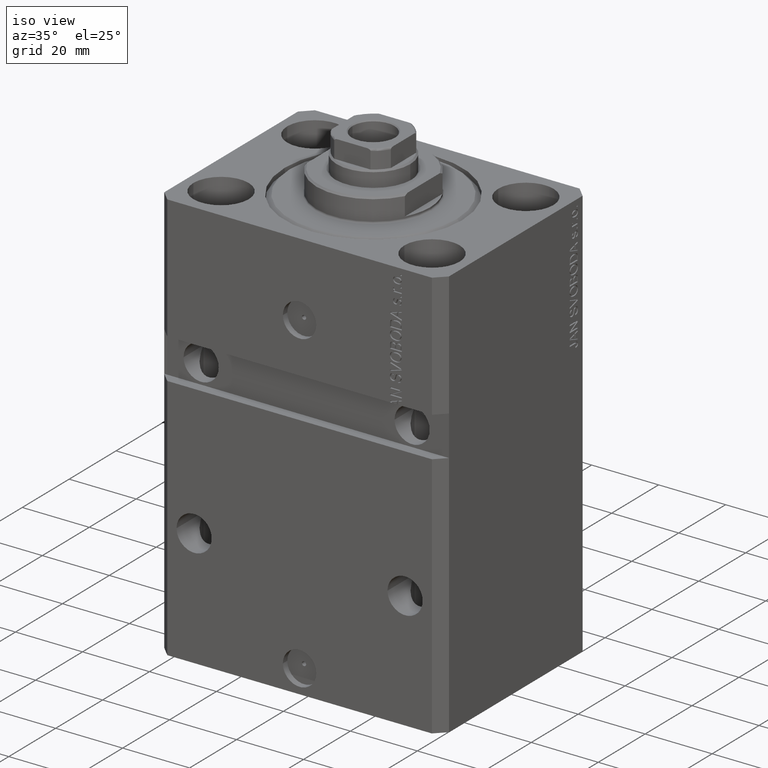
[diagram: clean part render]
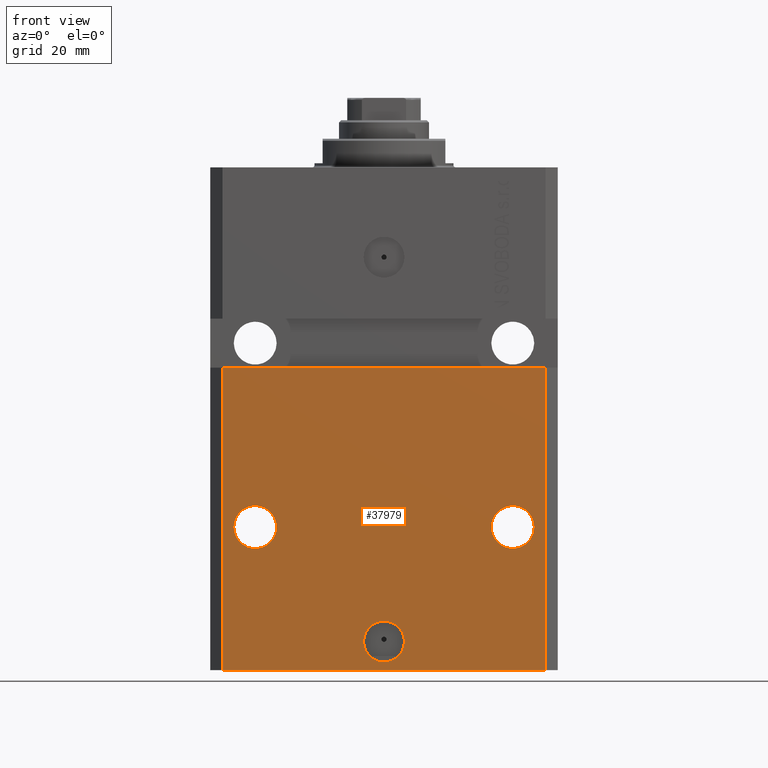
[diagram: tour spotlight — one face highlighted and labeled with its STEP entity id]
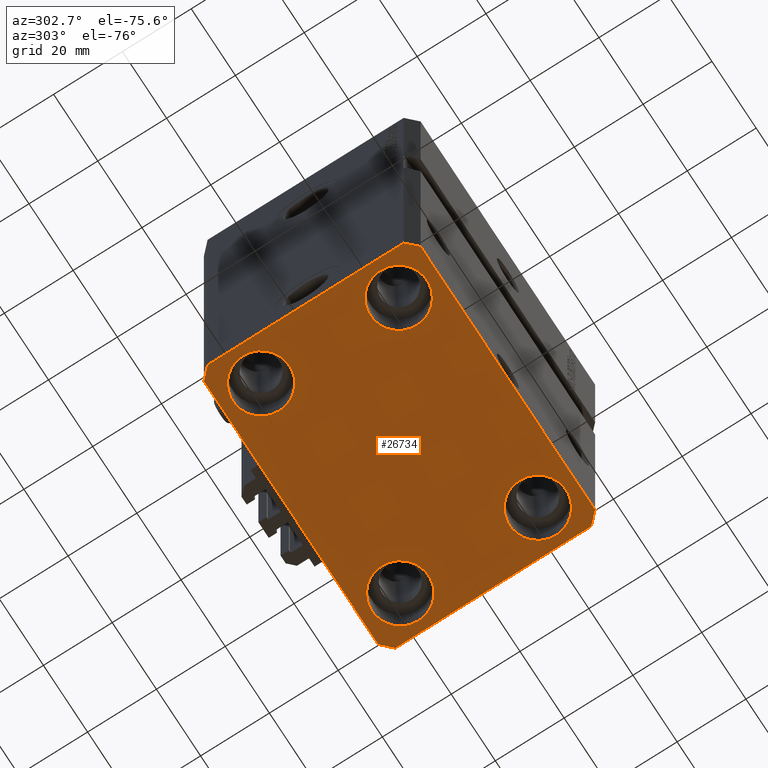
[diagram: tour spotlight — one face highlighted and labeled with its STEP entity id]
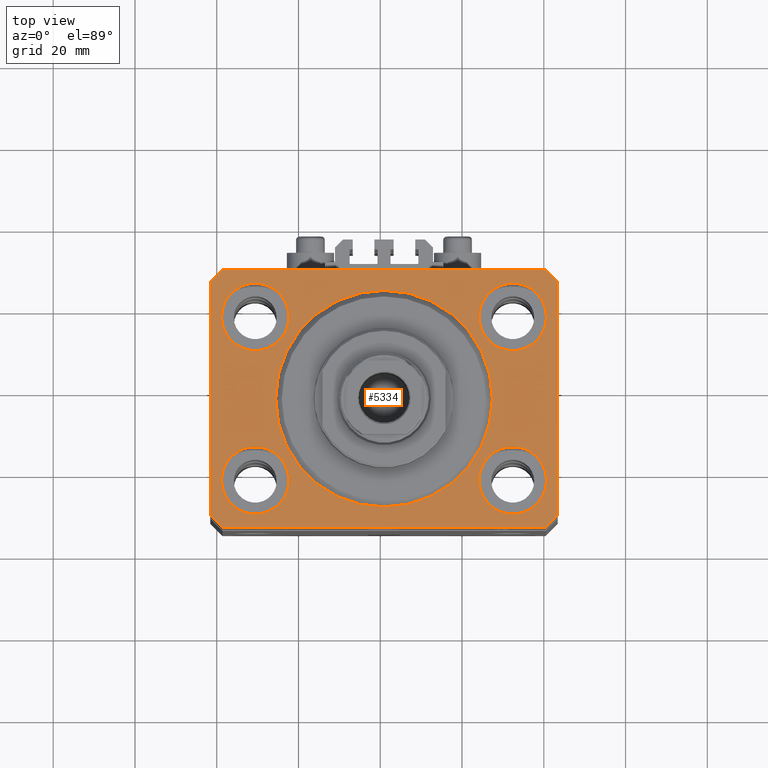
[diagram: tour spotlight — one face highlighted and labeled with its STEP entity id]
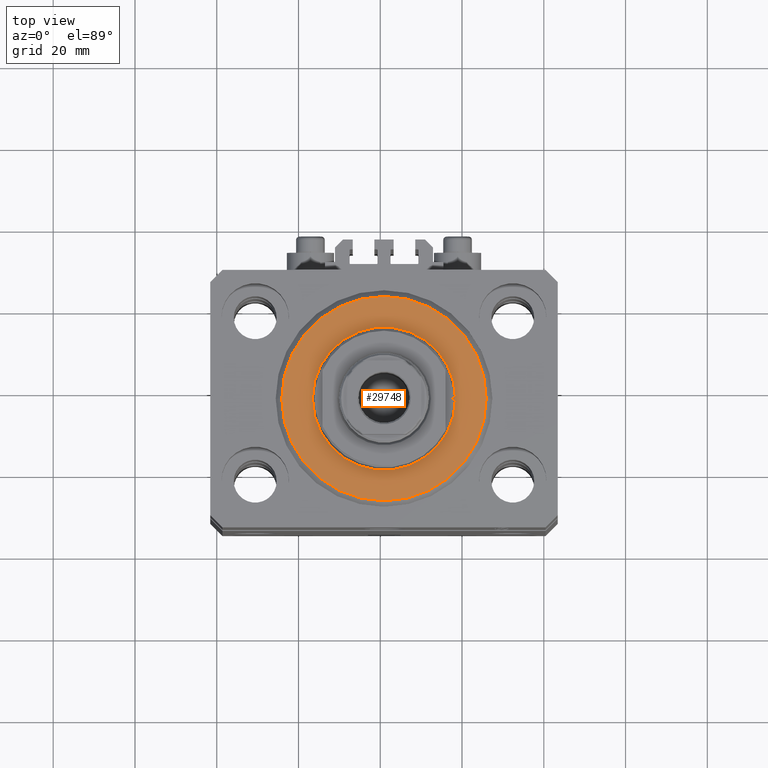
[diagram: tour spotlight — one face highlighted and labeled with its STEP entity id]
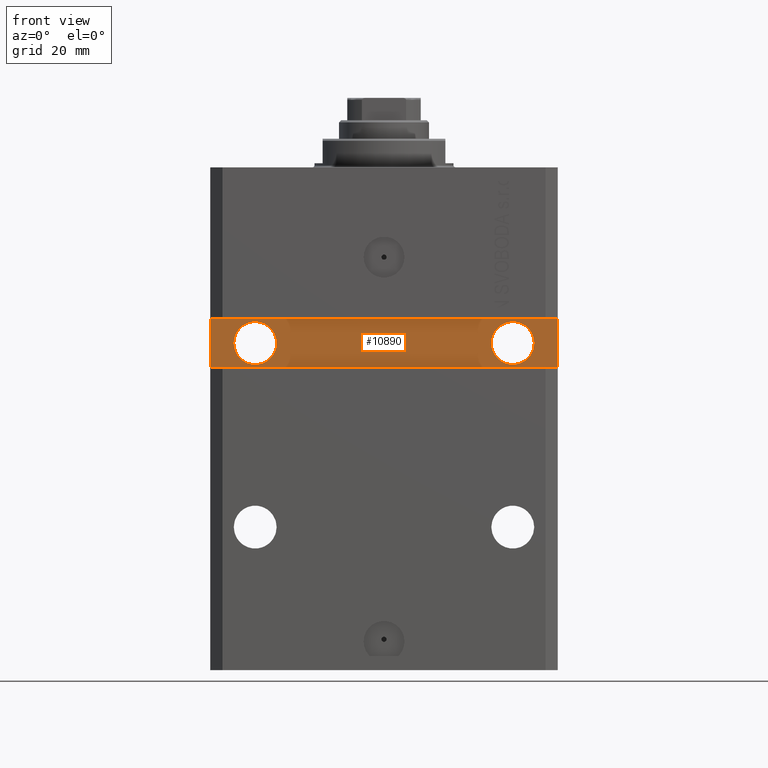
[diagram: tour spotlight — one face highlighted and labeled with its STEP entity id]
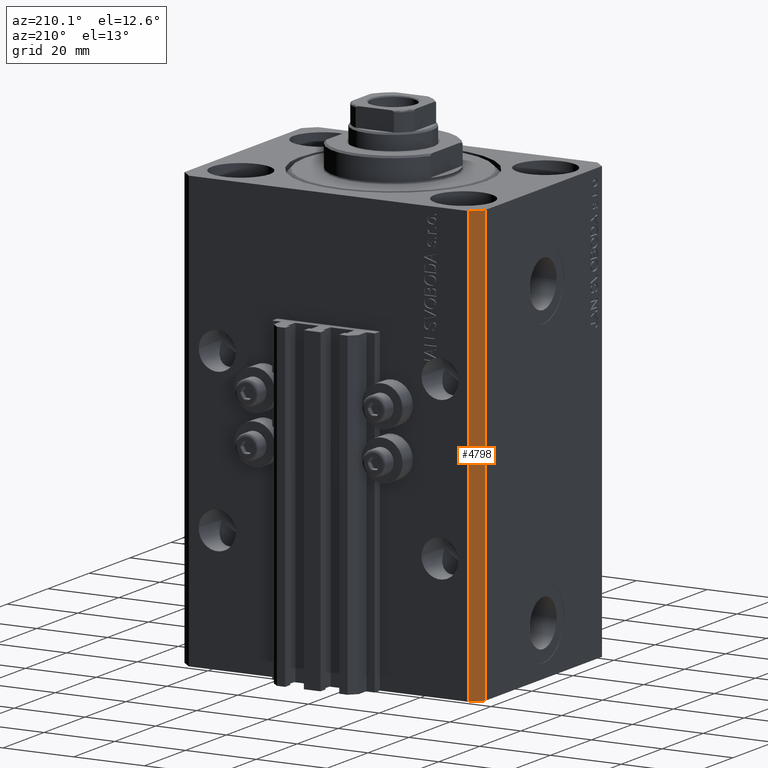
[diagram: tour spotlight — one face highlighted and labeled with its STEP entity id]
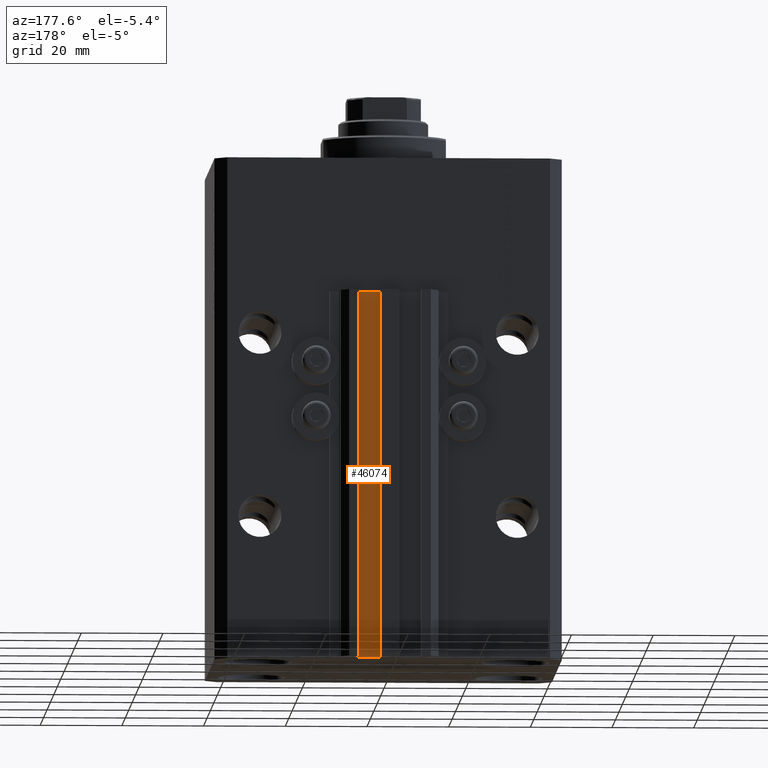
[diagram: tour spotlight — one face highlighted and labeled with its STEP entity id]
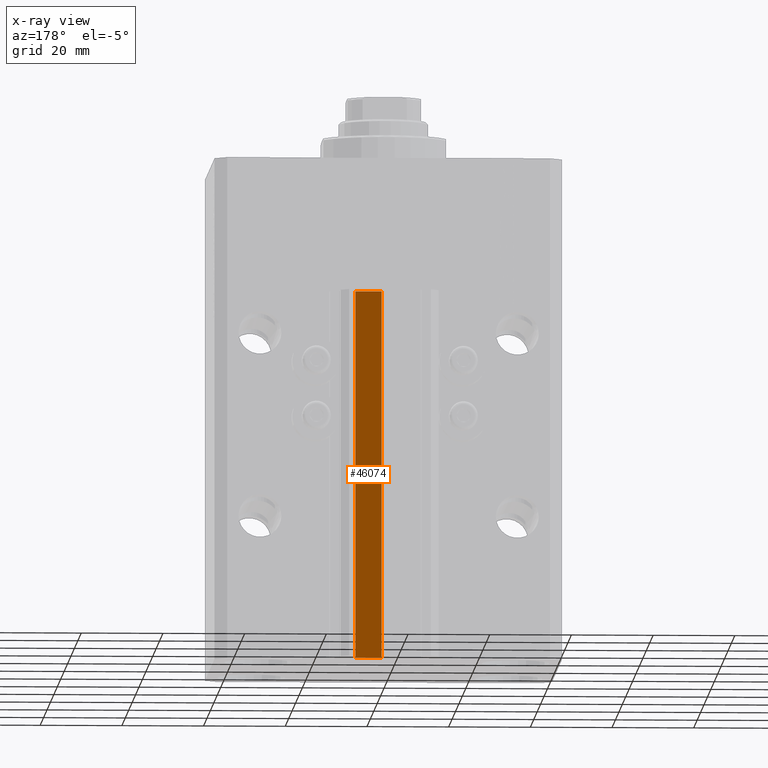
[diagram: x-ray of the same camera — body ghosted, this tour face saturated]
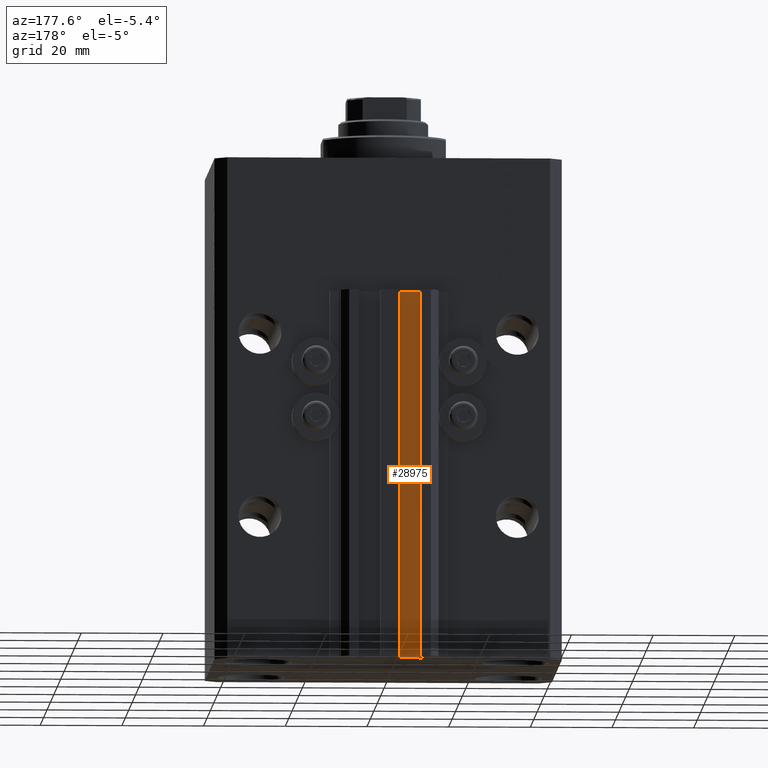
[diagram: tour spotlight — one face highlighted and labeled with its STEP entity id]
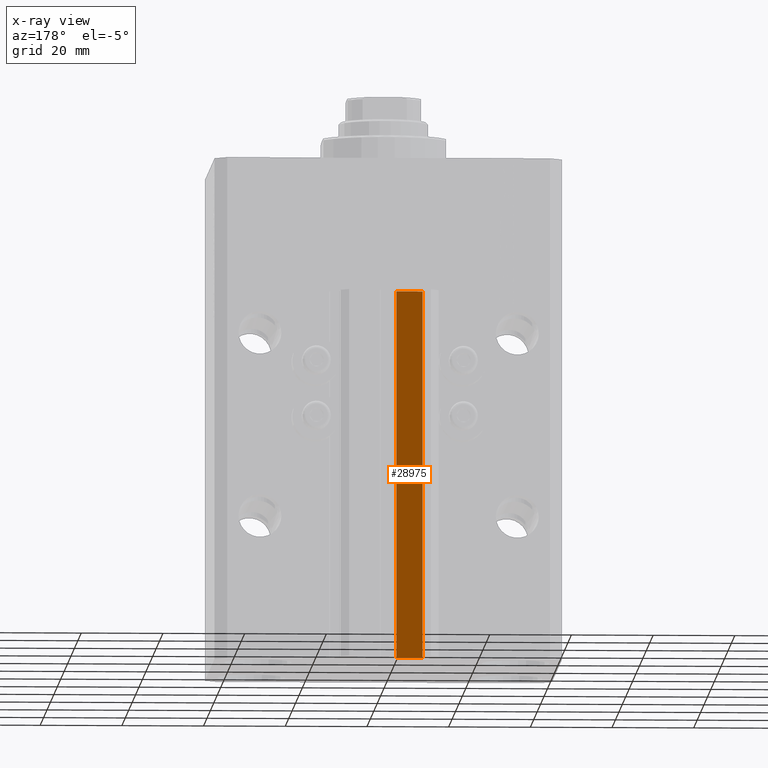
[diagram: x-ray of the same camera — body ghosted, this tour face saturated]
A machine part: a face-by-face anatomy tour. The part has 1107 B-rep faces; the first image is the clean iso view, then the 8 largest visible faces are spotlighted one at a time (largest first), each with its STEP entity span.

Face 1 — front view, entity #37979. In plain terms, the highlighted planar face has unit normal (0, -1, 0).
Definition (entity closure, byte-faithful):
#220 = AXIS2_PLACEMENT_3D ( 'NONE', #5313, #1653, #20873 ) ;
#490 = EDGE_CURVE ( 'NONE', #46534, #33965, #43557, .T. ) ;
#861 = CARTESIAN_POINT ( 'NONE',  ( -39.50000000000000711, -31.50000000000000000, -123.0000000000000000 ) ) ;
#1617 = CARTESIAN_POINT ( 'NONE',  ( 39.50000000000000711, -31.50000000000000000, -123.0000000000000000 ) ) ;
#1653 = DIRECTION ( 'NONE',  ( 1.176083712526788232E-16, -1.000000000000000000, 0.000000000000000000 ) ) ;
#2734 = CARTESIAN_POINT ( 'NONE',  ( 0.000000000000000000, -31.50000000000000000, -115.9999999999999858 ) ) ;
#2955 = CARTESIAN_POINT ( 'NONE',  ( -39.50000000000000711, -31.50000000000000000, -123.0000000000000000 ) ) ;
#4134 = CARTESIAN_POINT ( 'NONE',  ( -36.75000000000001421, -31.50000000000000711, -88.00000000000000000 ) ) ;
#4518 = LINE ( 'NONE', #861, #22707 ) ;
#4840 = EDGE_CURVE ( 'NONE', #7355, #5908, #14085, .T. ) ;
#5313 = CARTESIAN_POINT ( 'NONE',  ( 0.000000000000000000, -31.50000000000000000, -115.9999999999999858 ) ) ;
#5908 = VERTEX_POINT ( 'NONE', #4134 ) ;
#6659 = AXIS2_PLACEMENT_3D ( 'NONE', #41878, #30211, #8318 ) ;
#6845 = DIRECTION ( 'NONE',  ( 1.000000000000000000, 1.632680918566406300E-16, 1.632680918566406300E-16 ) ) ;
#7355 = VERTEX_POINT ( 'NONE', #12836 ) ;
#7458 = DIRECTION ( 'NONE',  ( 0.000000000000000000, 0.000000000000000000, 1.000000000000000000 ) ) ;
#8237 = ORIENTED_EDGE ( 'NONE', *, *, #31622, .F. ) ;
#8318 = DIRECTION ( 'NONE',  ( 1.000000000000000000, 0.000000000000000000, 0.000000000000000000 ) ) ;
#8545 = EDGE_CURVE ( 'NONE', #40215, #25680, #4518, .T. ) ;
#8899 = EDGE_CURVE ( 'NONE', #11714, #13805, #29725, .T. ) ;
#10280 = DIRECTION ( 'NONE',  ( 1.176083712526788232E-16, -1.000000000000000000, 0.000000000000000000 ) ) ;
#10703 = FACE_BOUND ( 'NONE', #31826, .T. ) ;
#11714 = VERTEX_POINT ( 'NONE', #34319 ) ;
#12154 = AXIS2_PLACEMENT_3D ( 'NONE', #13877, #36466, #31876 ) ;
#12471 = AXIS2_PLACEMENT_3D ( 'NONE', #28753, #17587, #39958 ) ;
#12566 = CARTESIAN_POINT ( 'NONE',  ( 39.50000000000000711, -31.50000000000000000, -123.0000000000000000 ) ) ;
#12836 = CARTESIAN_POINT ( 'NONE',  ( -26.25000000000001776, -31.50000000000000711, -88.00000000000000000 ) ) ;
#13544 = CARTESIAN_POINT ( 'NONE',  ( -39.50000000000000000, -31.50000000000000711, -48.99999999999999289 ) ) ;
#13805 = VERTEX_POINT ( 'NONE', #32808 ) ;
#13841 = CIRCLE ( 'NONE', #20812, 5.249999999999997335 ) ;
#13877 = CARTESIAN_POINT ( 'NONE',  ( -39.50000000000000711, -31.50000000000000000, -123.0000000000000000 ) ) ;
#14085 = CIRCLE ( 'NONE', #42830, 5.249999999999997335 ) ;
#17044 = PLANE ( 'NONE',  #12154 ) ;
#17528 = FACE_BOUND ( 'NONE', #38945, .T. ) ;
#17545 = CIRCLE ( 'NONE', #6659, 5.249999999999997335 ) ;
#17587 = DIRECTION ( 'NONE',  ( 1.176083712526788232E-16, -1.000000000000000000, 0.000000000000000000 ) ) ;
#17661 = LINE ( 'NONE', #35161, #36873 ) ;
#18189 = ORIENTED_EDGE ( 'NONE', *, *, #4840, .F. ) ;
#18471 = CARTESIAN_POINT ( 'NONE',  ( 39.50000000000001421, -31.49999999999999289, -48.99999999999997868 ) ) ;
#18933 = CIRCLE ( 'NONE', #22013, 5.000000000000006217 ) ;
#18951 = ORIENTED_EDGE ( 'NONE', *, *, #490, .F. ) ;
#19309 = CARTESIAN_POINT ( 'NONE',  ( 36.75000000000001421, -31.49999999999999289, -88.00000000000000000 ) ) ;
#19762 = DIRECTION ( 'NONE',  ( -1.000000000000000000, 0.000000000000000000, 0.000000000000000000 ) ) ;
#20107 = LINE ( 'NONE', #12566, #46345 ) ;
#20812 = AXIS2_PLACEMENT_3D ( 'NONE', #31187, #45781, #19762 ) ;
#20873 = DIRECTION ( 'NONE',  ( 1.000000000000000000, 0.000000000000000000, 0.000000000000000000 ) ) ;
#22013 = AXIS2_PLACEMENT_3D ( 'NONE', #2734, #10280, #43585 ) ;
#22566 = CARTESIAN_POINT ( 'NONE',  ( -42.50000000000000000, -31.50000000000000711, -48.99999999999999289 ) ) ;
#22707 = VECTOR ( 'NONE', #7458, 1000.000000000000000 ) ;
#24473 = DIRECTION ( 'NONE',  ( 1.000000000000000000, 0.000000000000000000, 0.000000000000000000 ) ) ;
#25641 = ORIENTED_EDGE ( 'NONE', *, *, #41002, .F. ) ;
#25680 = VERTEX_POINT ( 'NONE', #13544 ) ;
#27152 = DIRECTION ( 'NONE',  ( 0.000000000000000000, 0.000000000000000000, 1.000000000000000000 ) ) ;
#28295 = ORIENTED_EDGE ( 'NONE', *, *, #33269, .T. ) ;
#28753 = CARTESIAN_POINT ( 'NONE',  ( 31.50000000000001421, -31.49999999999999289, -88.00000000000000000 ) ) ;
#29725 = CIRCLE ( 'NONE', #220, 5.000000000000006217 ) ;
#29816 = ORIENTED_EDGE ( 'NONE', *, *, #40236, .F. ) ;
#30197 = ORIENTED_EDGE ( 'NONE', *, *, #8899, .F. ) ;
#30211 = DIRECTION ( 'NONE',  ( 1.176083712526788232E-16, -1.000000000000000000, 0.000000000000000000 ) ) ;
#31187 = CARTESIAN_POINT ( 'NONE',  ( -31.50000000000001421, -31.50000000000000711, -88.00000000000000000 ) ) ;
#31622 = EDGE_CURVE ( 'NONE', #13805, #11714, #18933, .T. ) ;
#31826 = EDGE_LOOP ( 'NONE', ( #18951, #40557 ) ) ;
#31876 = DIRECTION ( 'NONE',  ( 0.000000000000000000, -0.000000000000000000, -1.000000000000000000 ) ) ;
#32063 = VERTEX_POINT ( 'NONE', #18471 ) ;
#32808 = CARTESIAN_POINT ( 'NONE',  ( -5.000000000000006217, -31.50000000000000000, -115.9999999999999858 ) ) ;
#33269 = EDGE_CURVE ( 'NONE', #40215, #47612, #17661, .T. ) ;
#33965 = VERTEX_POINT ( 'NONE', #34852 ) ;
#34319 = CARTESIAN_POINT ( 'NONE',  ( 5.000000000000006217, -31.50000000000000000, -115.9999999999999858 ) ) ;
#34852 = CARTESIAN_POINT ( 'NONE',  ( 26.25000000000001776, -31.49999999999999289, -88.00000000000000000 ) ) ;
#35161 = CARTESIAN_POINT ( 'NONE',  ( -39.50000000000000711, -31.50000000000000000, -123.0000000000000000 ) ) ;
#35467 = DIRECTION ( 'NONE',  ( -1.000000000000000000, 0.000000000000000000, 0.000000000000000000 ) ) ;
#35990 = EDGE_LOOP ( 'NONE', ( #29816, #45743, #28295, #41906 ) ) ;
#36466 = DIRECTION ( 'NONE',  ( 0.000000000000000000, -1.000000000000000000, 0.000000000000000000 ) ) ;
#36873 = VECTOR ( 'NONE', #24473, 1000.000000000000000 ) ;
#37979 = ADVANCED_FACE ( 'NONE', ( #17528, #10703, #43541, #47674 ), #17044, .T. ) ;
#38870 = DIRECTION ( 'NONE',  ( 1.176083712526788232E-16, -1.000000000000000000, 0.000000000000000000 ) ) ;
#38945 = EDGE_LOOP ( 'NONE', ( #30197, #8237 ) ) ;
#39958 = DIRECTION ( 'NONE',  ( 1.000000000000000000, 0.000000000000000000, 0.000000000000000000 ) ) ;
#40170 = LINE ( 'NONE', #22566, #45657 ) ;
#40215 = VERTEX_POINT ( 'NONE', #2955 ) ;
#40236 = EDGE_CURVE ( 'NONE', #25680, #32063, #40170, .T. ) ;
#40320 = EDGE_LOOP ( 'NONE', ( #18189, #25641 ) ) ;
#40557 = ORIENTED_EDGE ( 'NONE', *, *, #42905, .F. ) ;
#41002 = EDGE_CURVE ( 'NONE', #5908, #7355, #13841, .T. ) ;
#41878 = CARTESIAN_POINT ( 'NONE',  ( 31.50000000000001421, -31.49999999999999289, -88.00000000000000000 ) ) ;
#41906 = ORIENTED_EDGE ( 'NONE', *, *, #47510, .T. ) ;
#42830 = AXIS2_PLACEMENT_3D ( 'NONE', #46176, #38870, #35467 ) ;
#42905 = EDGE_CURVE ( 'NONE', #33965, #46534, #17545, .T. ) ;
#43541 = FACE_BOUND ( 'NONE', #40320, .T. ) ;
#43557 = CIRCLE ( 'NONE', #12471, 5.249999999999997335 ) ;
#43585 = DIRECTION ( 'NONE',  ( 1.000000000000000000, 0.000000000000000000, 0.000000000000000000 ) ) ;
#45657 = VECTOR ( 'NONE', #6845, 1000.000000000000000 ) ;
#45743 = ORIENTED_EDGE ( 'NONE', *, *, #8545, .F. ) ;
#45781 = DIRECTION ( 'NONE',  ( 1.176083712526788232E-16, -1.000000000000000000, 0.000000000000000000 ) ) ;
#46176 = CARTESIAN_POINT ( 'NONE',  ( -31.50000000000001421, -31.50000000000000711, -88.00000000000000000 ) ) ;
#46345 = VECTOR ( 'NONE', #27152, 1000.000000000000000 ) ;
#46534 = VERTEX_POINT ( 'NONE', #19309 ) ;
#47510 = EDGE_CURVE ( 'NONE', #47612, #32063, #20107, .T. ) ;
#47612 = VERTEX_POINT ( 'NONE', #1617 ) ;
#47674 = FACE_OUTER_BOUND ( 'NONE', #35990, .T. ) ;

Face 2 — auxiliary view, entity #26734. In plain terms, the highlighted planar face has unit normal (0, 0, 1).
Definition (entity closure, byte-faithful):
#202 = EDGE_LOOP ( 'NONE', ( #12592, #39769 ) ) ;
#780 = CARTESIAN_POINT ( 'NONE',  ( 31.50000000000000000, -20.00000000000000000, -123.0000000000000000 ) ) ;
#1141 = EDGE_CURVE ( 'NONE', #10388, #35015, #33435, .T. ) ;
#1332 = CARTESIAN_POINT ( 'NONE',  ( 0.000000000000000000, 0.000000000000000000, -123.0000000000000000 ) ) ;
#1617 = CARTESIAN_POINT ( 'NONE',  ( 39.50000000000000711, -31.50000000000000000, -123.0000000000000000 ) ) ;
#1802 = EDGE_CURVE ( 'NONE', #47612, #45856, #27444, .T. ) ;
#2045 = DIRECTION ( 'NONE',  ( -0.000000000000000000, -0.000000000000000000, 1.000000000000000000 ) ) ;
#2955 = CARTESIAN_POINT ( 'NONE',  ( -39.50000000000000711, -31.50000000000000000, -123.0000000000000000 ) ) ;
#3020 = VERTEX_POINT ( 'NONE', #13507 ) ;
#3106 = DIRECTION ( 'NONE',  ( -0.000000000000000000, -0.000000000000000000, 1.000000000000000000 ) ) ;
#3366 = CARTESIAN_POINT ( 'NONE',  ( 31.50000000000000000, 20.00000000000001066, -123.0000000000000000 ) ) ;
#3624 = ORIENTED_EDGE ( 'NONE', *, *, #35683, .T. ) ;
#4993 = ORIENTED_EDGE ( 'NONE', *, *, #33269, .F. ) ;
#5083 = CIRCLE ( 'NONE', #11292, 8.250000000000000000 ) ;
#5243 = ORIENTED_EDGE ( 'NONE', *, *, #10832, .T. ) ;
#5462 = PLANE ( 'NONE',  #32896 ) ;
#5752 = AXIS2_PLACEMENT_3D ( 'NONE', #36425, #3106, #14311 ) ;
#6147 = AXIS2_PLACEMENT_3D ( 'NONE', #29622, #10203, #14327 ) ;
#6502 = CARTESIAN_POINT ( 'NONE',  ( 39.74999999999999289, -20.00000000000000000, -123.0000000000000000 ) ) ;
#6556 = EDGE_CURVE ( 'NONE', #27418, #18473, #45900, .T. ) ;
#6690 = LINE ( 'NONE', #29295, #38367 ) ;
#7221 = ORIENTED_EDGE ( 'NONE', *, *, #1141, .T. ) ;
#7387 = ORIENTED_EDGE ( 'NONE', *, *, #32503, .F. ) ;
#7410 = CARTESIAN_POINT ( 'NONE',  ( -39.75000000000000000, -20.00000000000000000, -123.0000000000000000 ) ) ;
#7435 = AXIS2_PLACEMENT_3D ( 'NONE', #15910, #2045, #34870 ) ;
#8656 = ORIENTED_EDGE ( 'NONE', *, *, #35209, .F. ) ;
#8748 = VERTEX_POINT ( 'NONE', #12849 ) ;
#8934 = DIRECTION ( 'NONE',  ( -1.000000000000000000, 0.000000000000000000, 0.000000000000000000 ) ) ;
#9504 = CARTESIAN_POINT ( 'NONE',  ( -39.50000000000000711, 31.50000000000000000, -123.0000000000000000 ) ) ;
#9946 = CARTESIAN_POINT ( 'NONE',  ( 42.50000000000051870, 28.49999999999995381, -123.0000000000000000 ) ) ;
#10203 = DIRECTION ( 'NONE',  ( -0.000000000000000000, -0.000000000000000000, 1.000000000000000000 ) ) ;
#10213 = DIRECTION ( 'NONE',  ( 1.000000000000000000, 0.000000000000000000, 0.000000000000000000 ) ) ;
#10388 = VERTEX_POINT ( 'NONE', #7410 ) ;
#10481 = EDGE_CURVE ( 'NONE', #12805, #12587, #42188, .T. ) ;
#10712 = EDGE_CURVE ( 'NONE', #8748, #40215, #11239, .T. ) ;
#10832 = EDGE_CURVE ( 'NONE', #24009, #28116, #13534, .T. ) ;
#10883 = VERTEX_POINT ( 'NONE', #40799 ) ;
#11239 = LINE ( 'NONE', #36308, #33675 ) ;
#11285 = CARTESIAN_POINT ( 'NONE',  ( -31.50000000000000000, -20.00000000000000000, -123.0000000000000000 ) ) ;
#11292 = AXIS2_PLACEMENT_3D ( 'NONE', #36140, #32960, #14493 ) ;
#11757 = DIRECTION ( 'NONE',  ( -0.000000000000000000, -0.000000000000000000, 1.000000000000000000 ) ) ;
#11790 = FACE_OUTER_BOUND ( 'NONE', #39113, .T. ) ;
#11979 = DIRECTION ( 'NONE',  ( -0.000000000000000000, -0.000000000000000000, 1.000000000000000000 ) ) ;
#12018 = CARTESIAN_POINT ( 'NONE',  ( 31.50000000000000000, 20.00000000000001066, -123.0000000000000000 ) ) ;
#12038 = DIRECTION ( 'NONE',  ( 0.000000000000000000, 0.000000000000000000, 1.000000000000000000 ) ) ;
#12276 = FACE_BOUND ( 'NONE', #43959, .T. ) ;
#12437 = VECTOR ( 'NONE', #42450, 1000.000000000000000 ) ;
#12587 = VERTEX_POINT ( 'NONE', #39207 ) ;
#12592 = ORIENTED_EDGE ( 'NONE', *, *, #27460, .T. ) ;
#12641 = ORIENTED_EDGE ( 'NONE', *, *, #20156, .F. ) ;
#12680 = CARTESIAN_POINT ( 'NONE',  ( -23.25000000000000000, -20.00000000000000000, -123.0000000000000000 ) ) ;
#12805 = VERTEX_POINT ( 'NONE', #41345 ) ;
#12845 = ORIENTED_EDGE ( 'NONE', *, *, #19021, .F. ) ;
#12849 = CARTESIAN_POINT ( 'NONE',  ( -42.50000000000000000, -28.50000000000000000, -123.0000000000000000 ) ) ;
#13507 = CARTESIAN_POINT ( 'NONE',  ( 23.25000000000000355, -20.00000000000000000, -123.0000000000000000 ) ) ;
#13534 = CIRCLE ( 'NONE', #5752, 8.250000000000000000 ) ;
#13985 = CARTESIAN_POINT ( 'NONE',  ( -39.75000000000000000, 20.00000000000000000, -123.0000000000000000 ) ) ;
#14311 = DIRECTION ( 'NONE',  ( 1.000000000000000000, 0.000000000000000000, 0.000000000000000000 ) ) ;
#14327 = DIRECTION ( 'NONE',  ( 1.000000000000000000, 0.000000000000000000, 0.000000000000000000 ) ) ;
#14493 = DIRECTION ( 'NONE',  ( 1.000000000000000000, 0.000000000000000000, 0.000000000000000000 ) ) ;
#14569 = AXIS2_PLACEMENT_3D ( 'NONE', #780, #11979, #19502 ) ;
#14837 = DIRECTION ( 'NONE',  ( -0.7071067811865356934, 0.7071067811865594521, 0.000000000000000000 ) ) ;
#15721 = EDGE_CURVE ( 'NONE', #3020, #40480, #44983, .T. ) ;
#15841 = AXIS2_PLACEMENT_3D ( 'NONE', #3366, #25981, #10213 ) ;
#15910 = CARTESIAN_POINT ( 'NONE',  ( -31.50000000000000000, 20.00000000000000000, -123.0000000000000000 ) ) ;
#16424 = CARTESIAN_POINT ( 'NONE',  ( -39.50000000000000711, 31.50000000000000000, -123.0000000000000000 ) ) ;
#17230 = ORIENTED_EDGE ( 'NONE', *, *, #10712, .F. ) ;
#17661 = LINE ( 'NONE', #35161, #36873 ) ;
#18473 = VERTEX_POINT ( 'NONE', #9504 ) ;
#19021 = EDGE_CURVE ( 'NONE', #18473, #10883, #41729, .T. ) ;
#19502 = DIRECTION ( 'NONE',  ( 1.000000000000000000, 0.000000000000000000, 0.000000000000000000 ) ) ;
#19544 = DIRECTION ( 'NONE',  ( 1.000000000000000000, 0.000000000000000000, 0.000000000000000000 ) ) ;
#19908 = CARTESIAN_POINT ( 'NONE',  ( 39.50000000000000711, -31.50000000000000000, -123.0000000000000000 ) ) ;
#20156 = EDGE_CURVE ( 'NONE', #40958, #27418, #33311, .T. ) ;
#20394 = DIRECTION ( 'NONE',  ( 0.7071067811865483499, 0.7071067811865466846, 0.000000000000000000 ) ) ;
#21626 = ORIENTED_EDGE ( 'NONE', *, *, #1802, .F. ) ;
#24009 = VERTEX_POINT ( 'NONE', #13985 ) ;
#24473 = DIRECTION ( 'NONE',  ( 1.000000000000000000, 0.000000000000000000, 0.000000000000000000 ) ) ;
#24544 = CIRCLE ( 'NONE', #7435, 8.250000000000000000 ) ;
#25897 = AXIS2_PLACEMENT_3D ( 'NONE', #12018, #26841, #19544 ) ;
#25981 = DIRECTION ( 'NONE',  ( -0.000000000000000000, -0.000000000000000000, 1.000000000000000000 ) ) ;
#26486 = CARTESIAN_POINT ( 'NONE',  ( 42.50000000000000711, -28.50000000000000355, -123.0000000000000000 ) ) ;
#26489 = VECTOR ( 'NONE', #20394, 1000.000000000000000 ) ;
#26734 = ADVANCED_FACE ( 'NONE', ( #42429, #37812, #38778, #12276, #11790 ), #5462, .F. ) ;
#26841 = DIRECTION ( 'NONE',  ( -0.000000000000000000, -0.000000000000000000, 1.000000000000000000 ) ) ;
#27418 = VERTEX_POINT ( 'NONE', #35006 ) ;
#27444 = LINE ( 'NONE', #19908, #26489 ) ;
#27460 = EDGE_CURVE ( 'NONE', #12587, #12805, #43043, .T. ) ;
#27605 = VECTOR ( 'NONE', #42050, 1000.000000000000000 ) ;
#27873 = ORIENTED_EDGE ( 'NONE', *, *, #40089, .T. ) ;
#28116 = VERTEX_POINT ( 'NONE', #41274 ) ;
#29295 = CARTESIAN_POINT ( 'NONE',  ( -42.50000000000000000, 28.50000000000000000, -123.0000000000000000 ) ) ;
#29622 = CARTESIAN_POINT ( 'NONE',  ( 31.50000000000000000, -20.00000000000000000, -123.0000000000000000 ) ) ;
#29753 = CARTESIAN_POINT ( 'NONE',  ( 42.50000000000051870, 28.49999999999995381, -123.0000000000000000 ) ) ;
#29903 = ORIENTED_EDGE ( 'NONE', *, *, #15721, .T. ) ;
#30963 = DIRECTION ( 'NONE',  ( 1.000000000000000000, 0.000000000000000000, 0.000000000000000000 ) ) ;
#31340 = ORIENTED_EDGE ( 'NONE', *, *, #35855, .T. ) ;
#32503 = EDGE_CURVE ( 'NONE', #10883, #8748, #6690, .T. ) ;
#32896 = AXIS2_PLACEMENT_3D ( 'NONE', #1332, #12038, #35122 ) ;
#32960 = DIRECTION ( 'NONE',  ( -0.000000000000000000, -0.000000000000000000, 1.000000000000000000 ) ) ;
#33269 = EDGE_CURVE ( 'NONE', #40215, #47612, #17661, .T. ) ;
#33311 = LINE ( 'NONE', #9946, #41990 ) ;
#33368 = CARTESIAN_POINT ( 'NONE',  ( 42.50000000000000711, -28.50000000000000355, -123.0000000000000000 ) ) ;
#33435 = CIRCLE ( 'NONE', #35778, 8.250000000000000000 ) ;
#33675 = VECTOR ( 'NONE', #47505, 1000.000000000000000 ) ;
#34870 = DIRECTION ( 'NONE',  ( 1.000000000000000000, 0.000000000000000000, 0.000000000000000000 ) ) ;
#35006 = CARTESIAN_POINT ( 'NONE',  ( 39.50000000000056843, 31.50000000000000000, -123.0000000000000000 ) ) ;
#35015 = VERTEX_POINT ( 'NONE', #12680 ) ;
#35122 = DIRECTION ( 'NONE',  ( 1.000000000000000000, 0.000000000000000000, -0.000000000000000000 ) ) ;
#35161 = CARTESIAN_POINT ( 'NONE',  ( -39.50000000000000711, -31.50000000000000000, -123.0000000000000000 ) ) ;
#35209 = EDGE_CURVE ( 'NONE', #45856, #40958, #41571, .T. ) ;
#35536 = CIRCLE ( 'NONE', #14569, 8.249999999999992895 ) ;
#35683 = EDGE_CURVE ( 'NONE', #35015, #10388, #5083, .T. ) ;
#35778 = AXIS2_PLACEMENT_3D ( 'NONE', #11285, #11757, #30963 ) ;
#35855 = EDGE_CURVE ( 'NONE', #28116, #24009, #24544, .T. ) ;
#36140 = CARTESIAN_POINT ( 'NONE',  ( -31.50000000000000000, -20.00000000000000000, -123.0000000000000000 ) ) ;
#36308 = CARTESIAN_POINT ( 'NONE',  ( -42.50000000000000000, -28.50000000000000000, -123.0000000000000000 ) ) ;
#36425 = CARTESIAN_POINT ( 'NONE',  ( -31.50000000000000000, 20.00000000000000000, -123.0000000000000000 ) ) ;
#36471 = EDGE_LOOP ( 'NONE', ( #7221, #3624 ) ) ;
#36873 = VECTOR ( 'NONE', #24473, 1000.000000000000000 ) ;
#37812 = FACE_BOUND ( 'NONE', #45330, .T. ) ;
#38367 = VECTOR ( 'NONE', #40718, 1000.000000000000000 ) ;
#38778 = FACE_BOUND ( 'NONE', #202, .T. ) ;
#39113 = EDGE_LOOP ( 'NONE', ( #44181, #12641, #8656, #21626, #4993, #17230, #7387, #12845 ) ) ;
#39207 = CARTESIAN_POINT ( 'NONE',  ( 23.25000000000000355, 20.00000000000001066, -123.0000000000000000 ) ) ;
#39769 = ORIENTED_EDGE ( 'NONE', *, *, #10481, .T. ) ;
#40089 = EDGE_CURVE ( 'NONE', #40480, #3020, #35536, .T. ) ;
#40215 = VERTEX_POINT ( 'NONE', #2955 ) ;
#40480 = VERTEX_POINT ( 'NONE', #6502 ) ;
#40718 = DIRECTION ( 'NONE',  ( 0.000000000000000000, -1.000000000000000000, 0.000000000000000000 ) ) ;
#40799 = CARTESIAN_POINT ( 'NONE',  ( -42.50000000000000000, 28.50000000000000000, -123.0000000000000000 ) ) ;
#40958 = VERTEX_POINT ( 'NONE', #29753 ) ;
#41274 = CARTESIAN_POINT ( 'NONE',  ( -23.25000000000000000, 20.00000000000000000, -123.0000000000000000 ) ) ;
#41345 = CARTESIAN_POINT ( 'NONE',  ( 39.74999999999999289, 20.00000000000001066, -123.0000000000000000 ) ) ;
#41571 = LINE ( 'NONE', #26486, #27605 ) ;
#41729 = LINE ( 'NONE', #16424, #12437 ) ;
#41990 = VECTOR ( 'NONE', #14837, 1000.000000000000114 ) ;
#42050 = DIRECTION ( 'NONE',  ( 8.886653596232072440E-15, 1.000000000000000000, 0.000000000000000000 ) ) ;
#42188 = CIRCLE ( 'NONE', #25897, 8.249999999999992895 ) ;
#42253 = CARTESIAN_POINT ( 'NONE',  ( 39.50000000000056843, 31.50000000000000000, -123.0000000000000000 ) ) ;
#42429 = FACE_BOUND ( 'NONE', #36471, .T. ) ;
#42450 = DIRECTION ( 'NONE',  ( -0.7071067811865471286, -0.7071067811865479058, 0.000000000000000000 ) ) ;
#43043 = CIRCLE ( 'NONE', #15841, 8.249999999999992895 ) ;
#43959 = EDGE_LOOP ( 'NONE', ( #5243, #31340 ) ) ;
#44181 = ORIENTED_EDGE ( 'NONE', *, *, #6556, .F. ) ;
#44983 = CIRCLE ( 'NONE', #6147, 8.249999999999992895 ) ;
#45165 = VECTOR ( 'NONE', #8934, 1000.000000000000000 ) ;
#45330 = EDGE_LOOP ( 'NONE', ( #29903, #27873 ) ) ;
#45856 = VERTEX_POINT ( 'NONE', #33368 ) ;
#45900 = LINE ( 'NONE', #42253, #45165 ) ;
#47505 = DIRECTION ( 'NONE',  ( 0.7071067811865471286, -0.7071067811865479058, 0.000000000000000000 ) ) ;
#47612 = VERTEX_POINT ( 'NONE', #1617 ) ;

Face 3 — top view, entity #5334. In plain terms, the highlighted planar face has unit normal (0, 0, 1).
Definition (entity closure, byte-faithful):
#17 = DIRECTION ( 'NONE',  ( 0.000000000000000000, 0.000000000000000000, 1.000000000000000000 ) ) ;
#85 = CARTESIAN_POINT ( 'NONE',  ( -39.50000000000000711, 31.50000000000000000, 0.000000000000000000 ) ) ;
#479 = ORIENTED_EDGE ( 'NONE', *, *, #1685, .F. ) ;
#824 = DIRECTION ( 'NONE',  ( 0.000000000000000000, 0.000000000000000000, 1.000000000000000000 ) ) ;
#898 = DIRECTION ( 'NONE',  ( 0.000000000000000000, 0.000000000000000000, 1.000000000000000000 ) ) ;
#975 = VECTOR ( 'NONE', #2896, 1000.000000000000000 ) ;
#1155 = VECTOR ( 'NONE', #6410, 1000.000000000000000 ) ;
#1177 = ORIENTED_EDGE ( 'NONE', *, *, #24964, .T. ) ;
#1195 = VECTOR ( 'NONE', #18795, 1000.000000000000000 ) ;
#1265 = LINE ( 'NONE', #44821, #1195 ) ;
#1280 = ORIENTED_EDGE ( 'NONE', *, *, #10966, .F. ) ;
#1464 = VERTEX_POINT ( 'NONE', #13163 ) ;
#1685 = EDGE_CURVE ( 'NONE', #31947, #47610, #11736, .T. ) ;
#1848 = ORIENTED_EDGE ( 'NONE', *, *, #46363, .T. ) ;
#2543 = ORIENTED_EDGE ( 'NONE', *, *, #6011, .F. ) ;
#2896 = DIRECTION ( 'NONE',  ( -0.7071067811865471286, -0.7071067811865479058, 0.000000000000000000 ) ) ;
#3141 = AXIS2_PLACEMENT_3D ( 'NONE', #45855, #9137, #4513 ) ;
#4513 = DIRECTION ( 'NONE',  ( 1.000000000000000000, 0.000000000000000000, 0.000000000000000000 ) ) ;
#4953 = LINE ( 'NONE', #26594, #17292 ) ;
#5318 = EDGE_LOOP ( 'NONE', ( #479, #44669 ) ) ;
#5321 = CARTESIAN_POINT ( 'NONE',  ( 39.50000000000000711, -31.50000000000000000, 0.000000000000000000 ) ) ;
#5334 = ADVANCED_FACE ( 'NONE', ( #35406, #40022, #32000, #24472, #13768, #31763 ), #17657, .T. ) ;
#5434 = VERTEX_POINT ( 'NONE', #21754 ) ;
#5437 = CARTESIAN_POINT ( 'NONE',  ( 31.50000000000000000, 20.00000000000001066, 0.000000000000000000 ) ) ;
#5687 = AXIS2_PLACEMENT_3D ( 'NONE', #29979, #15859, #26801 ) ;
#5790 = DIRECTION ( 'NONE',  ( 0.000000000000000000, 0.000000000000000000, 1.000000000000000000 ) ) ;
#5930 = DIRECTION ( 'NONE',  ( 0.000000000000000000, 0.000000000000000000, 1.000000000000000000 ) ) ;
#6011 = EDGE_CURVE ( 'NONE', #13939, #5434, #17205, .T. ) ;
#6038 = CARTESIAN_POINT ( 'NONE',  ( -31.50000000000000000, 20.00000000000000000, 0.000000000000000000 ) ) ;
#6410 = DIRECTION ( 'NONE',  ( 8.886653596232072440E-15, 1.000000000000000000, 0.000000000000000000 ) ) ;
#6511 = DIRECTION ( 'NONE',  ( 1.000000000000000000, 0.000000000000000000, 0.000000000000000000 ) ) ;
#6553 = LINE ( 'NONE', #32560, #975 ) ;
#6721 = CARTESIAN_POINT ( 'NONE',  ( -23.25000000000000000, 20.00000000000000000, 0.000000000000000000 ) ) ;
#7706 = EDGE_LOOP ( 'NONE', ( #33959, #36409, #39363, #1848, #1177, #40228, #22893, #9405 ) ) ;
#8198 = CARTESIAN_POINT ( 'NONE',  ( -26.50000000000000355, 3.245314017740486554E-15, 0.000000000000000000 ) ) ;
#8480 = DIRECTION ( 'NONE',  ( -1.000000000000000000, 0.000000000000000000, 0.000000000000000000 ) ) ;
#9051 = AXIS2_PLACEMENT_3D ( 'NONE', #16155, #824, #27327 ) ;
#9137 = DIRECTION ( 'NONE',  ( 0.000000000000000000, 0.000000000000000000, 1.000000000000000000 ) ) ;
#9384 = VERTEX_POINT ( 'NONE', #12423 ) ;
#9405 = ORIENTED_EDGE ( 'NONE', *, *, #42053, .T. ) ;
#9755 = CARTESIAN_POINT ( 'NONE',  ( 26.50000000000000355, 0.000000000000000000, 0.000000000000000000 ) ) ;
#9828 = LINE ( 'NONE', #24656, #1155 ) ;
#9849 = EDGE_CURVE ( 'NONE', #27595, #36780, #15778, .T. ) ;
#9872 = VERTEX_POINT ( 'NONE', #5321 ) ;
#10523 = VECTOR ( 'NONE', #29616, 1000.000000000000114 ) ;
#10966 = EDGE_CURVE ( 'NONE', #42397, #42233, #27468, .T. ) ;
#11392 = CARTESIAN_POINT ( 'NONE',  ( 39.50000000000056843, 31.50000000000000000, 0.000000000000000000 ) ) ;
#11525 = VERTEX_POINT ( 'NONE', #26848 ) ;
#11736 = CIRCLE ( 'NONE', #35038, 26.50000000000000355 ) ;
#12370 = EDGE_LOOP ( 'NONE', ( #18715, #22488 ) ) ;
#12423 = CARTESIAN_POINT ( 'NONE',  ( -42.50000000000000000, 28.50000000000000000, 0.000000000000000000 ) ) ;
#12597 = ORIENTED_EDGE ( 'NONE', *, *, #43142, .F. ) ;
#12831 = CARTESIAN_POINT ( 'NONE',  ( -23.25000000000000000, -20.00000000000000000, 0.000000000000000000 ) ) ;
#13163 = CARTESIAN_POINT ( 'NONE',  ( 39.74999999999999289, -20.00000000000000000, 0.000000000000000000 ) ) ;
#13400 = VERTEX_POINT ( 'NONE', #27589 ) ;
#13768 = FACE_BOUND ( 'NONE', #5318, .T. ) ;
#13939 = VERTEX_POINT ( 'NONE', #12831 ) ;
#15544 = CARTESIAN_POINT ( 'NONE',  ( -42.50000000000000000, -28.50000000000000000, 0.000000000000000000 ) ) ;
#15611 = DIRECTION ( 'NONE',  ( 0.7071067811865483499, 0.7071067811865466846, 0.000000000000000000 ) ) ;
#15738 = DIRECTION ( 'NONE',  ( 1.000000000000000000, 0.000000000000000000, 0.000000000000000000 ) ) ;
#15778 = LINE ( 'NONE', #45204, #26661 ) ;
#15859 = DIRECTION ( 'NONE',  ( 0.000000000000000000, 0.000000000000000000, 1.000000000000000000 ) ) ;
#15984 = AXIS2_PLACEMENT_3D ( 'NONE', #18030, #17, #28501 ) ;
#16155 = CARTESIAN_POINT ( 'NONE',  ( 0.000000000000000000, 0.000000000000000000, 0.000000000000000000 ) ) ;
#16334 = CIRCLE ( 'NONE', #3141, 8.249999999999992895 ) ;
#17205 = CIRCLE ( 'NONE', #27280, 8.250000000000000000 ) ;
#17292 = VECTOR ( 'NONE', #27312, 1000.000000000000000 ) ;
#17657 = PLANE ( 'NONE',  #20282 ) ;
#17950 = VERTEX_POINT ( 'NONE', #19274 ) ;
#18030 = CARTESIAN_POINT ( 'NONE',  ( 31.50000000000000000, -20.00000000000000000, 0.000000000000000000 ) ) ;
#18711 = DIRECTION ( 'NONE',  ( 1.000000000000000000, 0.000000000000000000, 0.000000000000000000 ) ) ;
#18715 = ORIENTED_EDGE ( 'NONE', *, *, #29479, .F. ) ;
#18795 = DIRECTION ( 'NONE',  ( 0.000000000000000000, -1.000000000000000000, 0.000000000000000000 ) ) ;
#18885 = EDGE_CURVE ( 'NONE', #42233, #42397, #45074, .T. ) ;
#18997 = EDGE_CURVE ( 'NONE', #1464, #42268, #16334, .T. ) ;
#19274 = CARTESIAN_POINT ( 'NONE',  ( 39.74999999999999289, 20.00000000000001066, 0.000000000000000000 ) ) ;
#19949 = CARTESIAN_POINT ( 'NONE',  ( 23.25000000000000355, 20.00000000000001066, 0.000000000000000000 ) ) ;
#20175 = CARTESIAN_POINT ( 'NONE',  ( 42.50000000000000711, -28.50000000000000355, 0.000000000000000000 ) ) ;
#20282 = AXIS2_PLACEMENT_3D ( 'NONE', #46604, #39790, #32247 ) ;
#20435 = CIRCLE ( 'NONE', #5687, 8.249999999999992895 ) ;
#21368 = AXIS2_PLACEMENT_3D ( 'NONE', #5437, #5930, #46791 ) ;
#21754 = CARTESIAN_POINT ( 'NONE',  ( -39.75000000000000000, -20.00000000000000000, 0.000000000000000000 ) ) ;
#21998 = ORIENTED_EDGE ( 'NONE', *, *, #18885, .F. ) ;
#22488 = ORIENTED_EDGE ( 'NONE', *, *, #33927, .F. ) ;
#22893 = ORIENTED_EDGE ( 'NONE', *, *, #44798, .T. ) ;
#23309 = EDGE_LOOP ( 'NONE', ( #1280, #21998 ) ) ;
#23310 = AXIS2_PLACEMENT_3D ( 'NONE', #6038, #5790, #6511 ) ;
#23730 = VECTOR ( 'NONE', #15611, 1000.000000000000000 ) ;
#23741 = CARTESIAN_POINT ( 'NONE',  ( -31.50000000000000000, 20.00000000000000000, 0.000000000000000000 ) ) ;
#24001 = CARTESIAN_POINT ( 'NONE',  ( -31.50000000000000000, -20.00000000000000000, 0.000000000000000000 ) ) ;
#24472 = FACE_BOUND ( 'NONE', #23309, .T. ) ;
#24656 = CARTESIAN_POINT ( 'NONE',  ( 42.50000000000000711, -28.50000000000000355, 0.000000000000000000 ) ) ;
#24964 = EDGE_CURVE ( 'NONE', #13400, #9872, #4953, .T. ) ;
#26117 = CIRCLE ( 'NONE', #9051, 26.50000000000000355 ) ;
#26406 = ORIENTED_EDGE ( 'NONE', *, *, #39501, .F. ) ;
#26502 = DIRECTION ( 'NONE',  ( 0.000000000000000000, 0.000000000000000000, 1.000000000000000000 ) ) ;
#26594 = CARTESIAN_POINT ( 'NONE',  ( -39.50000000000000711, -31.50000000000000000, 0.000000000000000000 ) ) ;
#26661 = VECTOR ( 'NONE', #8480, 1000.000000000000000 ) ;
#26801 = DIRECTION ( 'NONE',  ( 1.000000000000000000, 0.000000000000000000, 0.000000000000000000 ) ) ;
#26848 = CARTESIAN_POINT ( 'NONE',  ( -42.50000000000000000, -28.50000000000000000, 0.000000000000000000 ) ) ;
#26912 = DIRECTION ( 'NONE',  ( 1.000000000000000000, 0.000000000000000000, 0.000000000000000000 ) ) ;
#26963 = DIRECTION ( 'NONE',  ( 0.000000000000000000, 0.000000000000000000, 1.000000000000000000 ) ) ;
#26970 = LINE ( 'NONE', #15544, #35401 ) ;
#26973 = CIRCLE ( 'NONE', #36292, 8.250000000000000000 ) ;
#27280 = AXIS2_PLACEMENT_3D ( 'NONE', #29681, #26502, #41348 ) ;
#27312 = DIRECTION ( 'NONE',  ( 1.000000000000000000, 0.000000000000000000, 0.000000000000000000 ) ) ;
#27327 = DIRECTION ( 'NONE',  ( 1.000000000000000000, 0.000000000000000000, 0.000000000000000000 ) ) ;
#27468 = CIRCLE ( 'NONE', #32916, 8.250000000000000000 ) ;
#27589 = CARTESIAN_POINT ( 'NONE',  ( -39.50000000000000711, -31.50000000000000000, 0.000000000000000000 ) ) ;
#27595 = VERTEX_POINT ( 'NONE', #11392 ) ;
#28501 = DIRECTION ( 'NONE',  ( 1.000000000000000000, 0.000000000000000000, 0.000000000000000000 ) ) ;
#28845 = EDGE_CURVE ( 'NONE', #36780, #9384, #6553, .T. ) ;
#29137 = CIRCLE ( 'NONE', #21368, 8.249999999999992895 ) ;
#29379 = CARTESIAN_POINT ( 'NONE',  ( 42.50000000000051870, 28.49999999999995381, 0.000000000000000000 ) ) ;
#29479 = EDGE_CURVE ( 'NONE', #17950, #44116, #20435, .T. ) ;
#29616 = DIRECTION ( 'NONE',  ( -0.7071067811865356934, 0.7071067811865594521, 0.000000000000000000 ) ) ;
#29681 = CARTESIAN_POINT ( 'NONE',  ( -31.50000000000000000, -20.00000000000000000, 0.000000000000000000 ) ) ;
#29979 = CARTESIAN_POINT ( 'NONE',  ( 31.50000000000000000, 20.00000000000001066, 0.000000000000000000 ) ) ;
#30138 = CARTESIAN_POINT ( 'NONE',  ( 0.000000000000000000, 0.000000000000000000, 0.000000000000000000 ) ) ;
#30314 = EDGE_LOOP ( 'NONE', ( #33771, #12597 ) ) ;
#31100 = DIRECTION ( 'NONE',  ( 0.7071067811865471286, -0.7071067811865479058, 0.000000000000000000 ) ) ;
#31763 = FACE_OUTER_BOUND ( 'NONE', #7706, .T. ) ;
#31947 = VERTEX_POINT ( 'NONE', #9755 ) ;
#32000 = FACE_BOUND ( 'NONE', #12370, .T. ) ;
#32247 = DIRECTION ( 'NONE',  ( 1.000000000000000000, 0.000000000000000000, -0.000000000000000000 ) ) ;
#32498 = CARTESIAN_POINT ( 'NONE',  ( -39.75000000000000000, 20.00000000000000000, 0.000000000000000000 ) ) ;
#32560 = CARTESIAN_POINT ( 'NONE',  ( -39.50000000000000711, 31.50000000000000000, 0.000000000000000000 ) ) ;
#32916 = AXIS2_PLACEMENT_3D ( 'NONE', #23741, #35170, #26912 ) ;
#33277 = EDGE_LOOP ( 'NONE', ( #2543, #26406 ) ) ;
#33771 = ORIENTED_EDGE ( 'NONE', *, *, #18997, .F. ) ;
#33927 = EDGE_CURVE ( 'NONE', #44116, #17950, #29137, .T. ) ;
#33959 = ORIENTED_EDGE ( 'NONE', *, *, #9849, .T. ) ;
#34210 = CARTESIAN_POINT ( 'NONE',  ( 42.50000000000051870, 28.49999999999995381, 0.000000000000000000 ) ) ;
#35038 = AXIS2_PLACEMENT_3D ( 'NONE', #30138, #26963, #18711 ) ;
#35170 = DIRECTION ( 'NONE',  ( 0.000000000000000000, 0.000000000000000000, 1.000000000000000000 ) ) ;
#35401 = VECTOR ( 'NONE', #31100, 1000.000000000000000 ) ;
#35406 = FACE_BOUND ( 'NONE', #33277, .T. ) ;
#36292 = AXIS2_PLACEMENT_3D ( 'NONE', #24001, #898, #15738 ) ;
#36409 = ORIENTED_EDGE ( 'NONE', *, *, #28845, .T. ) ;
#36780 = VERTEX_POINT ( 'NONE', #85 ) ;
#39363 = ORIENTED_EDGE ( 'NONE', *, *, #42842, .T. ) ;
#39501 = EDGE_CURVE ( 'NONE', #5434, #13939, #26973, .T. ) ;
#39524 = VERTEX_POINT ( 'NONE', #34210 ) ;
#39790 = DIRECTION ( 'NONE',  ( 0.000000000000000000, 0.000000000000000000, 1.000000000000000000 ) ) ;
#40022 = FACE_BOUND ( 'NONE', #30314, .T. ) ;
#40228 = ORIENTED_EDGE ( 'NONE', *, *, #42832, .T. ) ;
#41348 = DIRECTION ( 'NONE',  ( 1.000000000000000000, 0.000000000000000000, 0.000000000000000000 ) ) ;
#41406 = CARTESIAN_POINT ( 'NONE',  ( 39.50000000000000711, -31.50000000000000000, 0.000000000000000000 ) ) ;
#42053 = EDGE_CURVE ( 'NONE', #39524, #27595, #47877, .T. ) ;
#42233 = VERTEX_POINT ( 'NONE', #32498 ) ;
#42268 = VERTEX_POINT ( 'NONE', #47344 ) ;
#42397 = VERTEX_POINT ( 'NONE', #6721 ) ;
#42832 = EDGE_CURVE ( 'NONE', #9872, #43300, #45765, .T. ) ;
#42842 = EDGE_CURVE ( 'NONE', #9384, #11525, #1265, .T. ) ;
#43142 = EDGE_CURVE ( 'NONE', #42268, #1464, #47053, .T. ) ;
#43300 = VERTEX_POINT ( 'NONE', #20175 ) ;
#44116 = VERTEX_POINT ( 'NONE', #19949 ) ;
#44669 = ORIENTED_EDGE ( 'NONE', *, *, #47884, .F. ) ;
#44798 = EDGE_CURVE ( 'NONE', #43300, #39524, #9828, .T. ) ;
#44821 = CARTESIAN_POINT ( 'NONE',  ( -42.50000000000000000, 28.50000000000000000, 0.000000000000000000 ) ) ;
#45074 = CIRCLE ( 'NONE', #23310, 8.250000000000000000 ) ;
#45204 = CARTESIAN_POINT ( 'NONE',  ( 39.50000000000056843, 31.50000000000000000, 0.000000000000000000 ) ) ;
#45765 = LINE ( 'NONE', #41406, #23730 ) ;
#45855 = CARTESIAN_POINT ( 'NONE',  ( 31.50000000000000000, -20.00000000000000000, 0.000000000000000000 ) ) ;
#46363 = EDGE_CURVE ( 'NONE', #11525, #13400, #26970, .T. ) ;
#46604 = CARTESIAN_POINT ( 'NONE',  ( 0.000000000000000000, 0.000000000000000000, 0.000000000000000000 ) ) ;
#46791 = DIRECTION ( 'NONE',  ( 1.000000000000000000, 0.000000000000000000, 0.000000000000000000 ) ) ;
#47053 = CIRCLE ( 'NONE', #15984, 8.249999999999992895 ) ;
#47344 = CARTESIAN_POINT ( 'NONE',  ( 23.25000000000000355, -20.00000000000000000, 0.000000000000000000 ) ) ;
#47610 = VERTEX_POINT ( 'NONE', #8198 ) ;
#47877 = LINE ( 'NONE', #29379, #10523 ) ;
#47884 = EDGE_CURVE ( 'NONE', #47610, #31947, #26117, .T. ) ;

Face 4 — top view, entity #29748. In plain terms, the highlighted planar face has unit normal (0, 0, -1).
Definition (entity closure, byte-faithful):
#2313 = EDGE_CURVE ( 'NONE', #17627, #16926, #13321, .T. ) ;
#3363 = FACE_BOUND ( 'NONE', #19177, .T. ) ;
#3538 = DIRECTION ( 'NONE',  ( -0.000000000000000000, -0.000000000000000000, -1.000000000000000000 ) ) ;
#3841 = CARTESIAN_POINT ( 'NONE',  ( 0.000000000000000000, 0.000000000000000000, 0.000000000000000000 ) ) ;
#5036 = AXIS2_PLACEMENT_3D ( 'NONE', #18863, #3538, #47821 ) ;
#7635 = CARTESIAN_POINT ( 'NONE',  ( 0.000000000000000000, 0.000000000000000000, 0.000000000000000000 ) ) ;
#12016 = DIRECTION ( 'NONE',  ( 0.000000000000000000, 0.000000000000000000, 1.000000000000000000 ) ) ;
#13240 = EDGE_CURVE ( 'NONE', #32607, #30002, #30658, .T. ) ;
#13261 = ORIENTED_EDGE ( 'NONE', *, *, #2313, .T. ) ;
#13321 = CIRCLE ( 'NONE', #25733, 17.50000000000000000 ) ;
#14573 = DIRECTION ( 'NONE',  ( 0.000000000000000000, 0.000000000000000000, 1.000000000000000000 ) ) ;
#15752 = DIRECTION ( 'NONE',  ( 1.000000000000000000, 0.000000000000000000, 0.000000000000000000 ) ) ;
#16926 = VERTEX_POINT ( 'NONE', #45608 ) ;
#17627 = VERTEX_POINT ( 'NONE', #27964 ) ;
#18216 = FACE_OUTER_BOUND ( 'NONE', #22183, .T. ) ;
#18863 = CARTESIAN_POINT ( 'NONE',  ( 0.000000000000000000, 0.000000000000000000, 0.000000000000000000 ) ) ;
#19177 = EDGE_LOOP ( 'NONE', ( #40766, #13261 ) ) ;
#22183 = EDGE_LOOP ( 'NONE', ( #43060, #47595 ) ) ;
#22344 = CARTESIAN_POINT ( 'NONE',  ( 0.000000000000000000, 0.000000000000000000, 0.000000000000000000 ) ) ;
#23673 = DIRECTION ( 'NONE',  ( 1.000000000000000000, 0.000000000000000000, 0.000000000000000000 ) ) ;
#24051 = EDGE_CURVE ( 'NONE', #16926, #17627, #47561, .T. ) ;
#25677 = CARTESIAN_POINT ( 'NONE',  ( 24.99999999999998224, 0.000000000000000000, 0.000000000000000000 ) ) ;
#25733 = AXIS2_PLACEMENT_3D ( 'NONE', #32131, #12016, #23673 ) ;
#26452 = DIRECTION ( 'NONE',  ( -0.000000000000000000, -0.000000000000000000, -1.000000000000000000 ) ) ;
#27964 = CARTESIAN_POINT ( 'NONE',  ( -17.50000000000000000, 2.143131898507868643E-15, 2.168404344971008868E-16 ) ) ;
#28809 = DIRECTION ( 'NONE',  ( 1.000000000000000000, 0.000000000000000000, 0.000000000000000000 ) ) ;
#29387 = DIRECTION ( 'NONE',  ( 1.000000000000000000, 0.000000000000000000, -0.000000000000000000 ) ) ;
#29748 = ADVANCED_FACE ( 'NONE', ( #3363, #18216 ), #33040, .F. ) ;
#30002 = VERTEX_POINT ( 'NONE', #25677 ) ;
#30658 = CIRCLE ( 'NONE', #5036, 24.99999999999998224 ) ;
#32131 = CARTESIAN_POINT ( 'NONE',  ( 0.000000000000000000, 0.000000000000000000, 0.000000000000000000 ) ) ;
#32471 = DIRECTION ( 'NONE',  ( 0.000000000000000000, 0.000000000000000000, 1.000000000000000000 ) ) ;
#32607 = VERTEX_POINT ( 'NONE', #41192 ) ;
#33040 = PLANE ( 'NONE',  #39126 ) ;
#35890 = AXIS2_PLACEMENT_3D ( 'NONE', #7635, #32471, #28809 ) ;
#39126 = AXIS2_PLACEMENT_3D ( 'NONE', #3841, #14573, #29387 ) ;
#40102 = CIRCLE ( 'NONE', #46312, 24.99999999999998224 ) ;
#40766 = ORIENTED_EDGE ( 'NONE', *, *, #24051, .T. ) ;
#41192 = CARTESIAN_POINT ( 'NONE',  ( -24.99999999999998224, 3.153465507804433615E-15, 0.000000000000000000 ) ) ;
#43060 = ORIENTED_EDGE ( 'NONE', *, *, #44319, .T. ) ;
#44319 = EDGE_CURVE ( 'NONE', #30002, #32607, #40102, .T. ) ;
#45608 = CARTESIAN_POINT ( 'NONE',  ( 17.50000000000000000, 0.000000000000000000, 2.168404344971008868E-16 ) ) ;
#46312 = AXIS2_PLACEMENT_3D ( 'NONE', #22344, #26452, #15752 ) ;
#47561 = CIRCLE ( 'NONE', #35890, 17.50000000000000000 ) ;
#47595 = ORIENTED_EDGE ( 'NONE', *, *, #13240, .T. ) ;
#47821 = DIRECTION ( 'NONE',  ( 1.000000000000000000, 0.000000000000000000, 0.000000000000000000 ) ) ;

Face 5 — front view, entity #10890. In plain terms, the highlighted planar face has unit normal (0, -1, 0).
Definition (entity closure, byte-faithful):
#80 = AXIS2_PLACEMENT_3D ( 'NONE', #20159, #34982, #31350 ) ;
#137 = CARTESIAN_POINT ( 'NONE',  ( 42.50000000000001421, -28.49999999999999289, -48.99999999999997868 ) ) ;
#915 = EDGE_CURVE ( 'NONE', #44088, #29296, #38376, .T. ) ;
#2582 = EDGE_CURVE ( 'NONE', #5081, #44386, #21061, .T. ) ;
#2625 = AXIS2_PLACEMENT_3D ( 'NONE', #19137, #33490, #18430 ) ;
#2902 = DIRECTION ( 'NONE',  ( 1.101411730780568590E-16, -1.000000000000000000, 0.000000000000000000 ) ) ;
#3776 = EDGE_CURVE ( 'NONE', #29296, #20149, #14589, .T. ) ;
#4768 = AXIS2_PLACEMENT_3D ( 'NONE', #25167, #14218, #13750 ) ;
#5067 = CARTESIAN_POINT ( 'NONE',  ( 42.50000000000001421, -28.49999999999999289, -37.00000000000000000 ) ) ;
#5081 = VERTEX_POINT ( 'NONE', #26653 ) ;
#6318 = DIRECTION ( 'NONE',  ( 1.000000000000000000, 0.000000000000000000, 0.000000000000000000 ) ) ;
#7242 = FACE_BOUND ( 'NONE', #28057, .T. ) ;
#8770 = DIRECTION ( 'NONE',  ( 1.000000000000000000, 0.000000000000000000, 0.000000000000000000 ) ) ;
#9960 = DIRECTION ( 'NONE',  ( 1.000000000000000000, 1.632680918566406300E-16, 1.632680918566406300E-16 ) ) ;
#10177 = ORIENTED_EDGE ( 'NONE', *, *, #17622, .F. ) ;
#10890 = ADVANCED_FACE ( 'NONE', ( #18902, #7242, #45149 ), #18661, .T. ) ;
#11404 = DIRECTION ( 'NONE',  ( 0.000000000000000000, 0.000000000000000000, -1.000000000000000000 ) ) ;
#13154 = CARTESIAN_POINT ( 'NONE',  ( -31.49999999999998579, -28.50000000000000355, -43.00000000000000000 ) ) ;
#13591 = LINE ( 'NONE', #45937, #38553 ) ;
#13750 = DIRECTION ( 'NONE',  ( 1.000000000000000000, 0.000000000000000000, 0.000000000000000000 ) ) ;
#14218 = DIRECTION ( 'NONE',  ( 1.037025423586453699E-16, -1.000000000000000000, 1.848892746611746419E-32 ) ) ;
#14589 = LINE ( 'NONE', #48138, #15697 ) ;
#15532 = CIRCLE ( 'NONE', #44287, 5.249999999999997335 ) ;
#15697 = VECTOR ( 'NONE', #11404, 1000.000000000000000 ) ;
#17622 = EDGE_CURVE ( 'NONE', #25815, #45512, #41125, .T. ) ;
#18338 = ORIENTED_EDGE ( 'NONE', *, *, #19316, .F. ) ;
#18430 = DIRECTION ( 'NONE',  ( 1.000000000000000000, 1.632680918566406300E-16, 0.000000000000000000 ) ) ;
#18661 = PLANE ( 'NONE',  #2625 ) ;
#18767 = CIRCLE ( 'NONE', #4768, 5.249999999999997335 ) ;
#18902 = FACE_BOUND ( 'NONE', #45079, .T. ) ;
#19137 = CARTESIAN_POINT ( 'NONE',  ( 4.790119779726142858E-15, -28.50000000000000000, 0.000000000000000000 ) ) ;
#19316 = EDGE_CURVE ( 'NONE', #45512, #25815, #15532, .T. ) ;
#19853 = ORIENTED_EDGE ( 'NONE', *, *, #2582, .F. ) ;
#19894 = ORIENTED_EDGE ( 'NONE', *, *, #3776, .T. ) ;
#20149 = VERTEX_POINT ( 'NONE', #36251 ) ;
#20159 = CARTESIAN_POINT ( 'NONE',  ( 31.50000000000001421, -28.49999999999999645, -43.00000000000000000 ) ) ;
#20694 = VECTOR ( 'NONE', #37095, 1000.000000000000000 ) ;
#21061 = CIRCLE ( 'NONE', #80, 5.249999999999997335 ) ;
#22482 = AXIS2_PLACEMENT_3D ( 'NONE', #46943, #2902, #6318 ) ;
#23147 = EDGE_CURVE ( 'NONE', #44386, #5081, #18767, .T. ) ;
#25167 = CARTESIAN_POINT ( 'NONE',  ( 31.50000000000001421, -28.49999999999999645, -43.00000000000000000 ) ) ;
#25815 = VERTEX_POINT ( 'NONE', #44160 ) ;
#26246 = ORIENTED_EDGE ( 'NONE', *, *, #44999, .T. ) ;
#26455 = VECTOR ( 'NONE', #38864, 1000.000000000000000 ) ;
#26653 = CARTESIAN_POINT ( 'NONE',  ( 36.75000000000001421, -28.49999999999999645, -43.00000000000000000 ) ) ;
#28057 = EDGE_LOOP ( 'NONE', ( #10177, #18338 ) ) ;
#29296 = VERTEX_POINT ( 'NONE', #31234 ) ;
#30344 = CARTESIAN_POINT ( 'NONE',  ( 26.25000000000001776, -28.49999999999999645, -43.00000000000000000 ) ) ;
#30359 = ORIENTED_EDGE ( 'NONE', *, *, #23147, .F. ) ;
#30856 = VERTEX_POINT ( 'NONE', #37458 ) ;
#31234 = CARTESIAN_POINT ( 'NONE',  ( -42.50000000000000000, -28.50000000000000711, -37.00000000000000711 ) ) ;
#31350 = DIRECTION ( 'NONE',  ( 1.000000000000000000, 0.000000000000000000, 0.000000000000000000 ) ) ;
#32886 = EDGE_LOOP ( 'NONE', ( #26246, #44925, #34478, #19894 ) ) ;
#33490 = DIRECTION ( 'NONE',  ( 1.632680918566406300E-16, -1.000000000000000000, 0.000000000000000000 ) ) ;
#34478 = ORIENTED_EDGE ( 'NONE', *, *, #915, .T. ) ;
#34982 = DIRECTION ( 'NONE',  ( 1.037025423586453699E-16, -1.000000000000000000, 1.848892746611746419E-32 ) ) ;
#36251 = CARTESIAN_POINT ( 'NONE',  ( -42.50000000000000000, -28.50000000000000711, -48.99999999999999289 ) ) ;
#37095 = DIRECTION ( 'NONE',  ( 0.000000000000000000, 0.000000000000000000, 1.000000000000000000 ) ) ;
#37331 = LINE ( 'NONE', #137, #20694 ) ;
#37458 = CARTESIAN_POINT ( 'NONE',  ( 42.50000000000001421, -28.49999999999999289, -48.99999999999997868 ) ) ;
#38376 = LINE ( 'NONE', #5067, #26455 ) ;
#38553 = VECTOR ( 'NONE', #9960, 1000.000000000000000 ) ;
#38671 = CARTESIAN_POINT ( 'NONE',  ( 42.50000000000001421, -28.49999999999999289, -37.00000000000000000 ) ) ;
#38864 = DIRECTION ( 'NONE',  ( -1.000000000000000000, -1.632680918566406300E-16, -8.163404592832031500E-17 ) ) ;
#41125 = CIRCLE ( 'NONE', #22482, 5.249999999999997335 ) ;
#41449 = CARTESIAN_POINT ( 'NONE',  ( -36.74999999999998579, -28.50000000000000355, -43.00000000000000000 ) ) ;
#41847 = DIRECTION ( 'NONE',  ( 1.101411730780568590E-16, -1.000000000000000000, 0.000000000000000000 ) ) ;
#43444 = EDGE_CURVE ( 'NONE', #30856, #44088, #37331, .T. ) ;
#44088 = VERTEX_POINT ( 'NONE', #38671 ) ;
#44160 = CARTESIAN_POINT ( 'NONE',  ( -26.24999999999998934, -28.50000000000000355, -43.00000000000000000 ) ) ;
#44287 = AXIS2_PLACEMENT_3D ( 'NONE', #13154, #41847, #8770 ) ;
#44386 = VERTEX_POINT ( 'NONE', #30344 ) ;
#44925 = ORIENTED_EDGE ( 'NONE', *, *, #43444, .T. ) ;
#44999 = EDGE_CURVE ( 'NONE', #20149, #30856, #13591, .T. ) ;
#45079 = EDGE_LOOP ( 'NONE', ( #19853, #30359 ) ) ;
#45149 = FACE_OUTER_BOUND ( 'NONE', #32886, .T. ) ;
#45512 = VERTEX_POINT ( 'NONE', #41449 ) ;
#45937 = CARTESIAN_POINT ( 'NONE',  ( -42.50000000000000000, -28.50000000000000711, -48.99999999999999289 ) ) ;
#46943 = CARTESIAN_POINT ( 'NONE',  ( -31.49999999999998579, -28.50000000000000355, -43.00000000000000000 ) ) ;
#48138 = CARTESIAN_POINT ( 'NONE',  ( -42.50000000000000000, -28.50000000000000711, -37.00000000000000711 ) ) ;

Face 6 — auxiliary view, entity #4798. In plain terms, the highlighted planar face has unit normal (-0.7071, 0.7071, 0).
Definition (entity closure, byte-faithful):
#85 = CARTESIAN_POINT ( 'NONE',  ( -39.50000000000000711, 31.50000000000000000, 0.000000000000000000 ) ) ;
#975 = VECTOR ( 'NONE', #2896, 1000.000000000000000 ) ;
#2694 = ORIENTED_EDGE ( 'NONE', *, *, #28845, .F. ) ;
#2896 = DIRECTION ( 'NONE',  ( -0.7071067811865471286, -0.7071067811865479058, 0.000000000000000000 ) ) ;
#3866 = CARTESIAN_POINT ( 'NONE',  ( -39.50000000000000711, 31.50000000000000000, -123.0000000000000000 ) ) ;
#4798 = ADVANCED_FACE ( 'NONE', ( #15067 ), #26712, .T. ) ;
#6235 = ORIENTED_EDGE ( 'NONE', *, *, #13344, .F. ) ;
#6553 = LINE ( 'NONE', #32560, #975 ) ;
#7308 = EDGE_CURVE ( 'NONE', #10883, #9384, #15511, .T. ) ;
#9384 = VERTEX_POINT ( 'NONE', #12423 ) ;
#9504 = CARTESIAN_POINT ( 'NONE',  ( -39.50000000000000711, 31.50000000000000000, -123.0000000000000000 ) ) ;
#10883 = VERTEX_POINT ( 'NONE', #40799 ) ;
#12423 = CARTESIAN_POINT ( 'NONE',  ( -42.50000000000000000, 28.50000000000000000, 0.000000000000000000 ) ) ;
#12437 = VECTOR ( 'NONE', #42450, 1000.000000000000000 ) ;
#13344 = EDGE_CURVE ( 'NONE', #18473, #36780, #14511, .T. ) ;
#13394 = VECTOR ( 'NONE', #14809, 1000.000000000000000 ) ;
#14511 = LINE ( 'NONE', #33447, #27530 ) ;
#14809 = DIRECTION ( 'NONE',  ( 0.000000000000000000, 0.000000000000000000, 1.000000000000000000 ) ) ;
#15067 = FACE_OUTER_BOUND ( 'NONE', #39545, .T. ) ;
#15511 = LINE ( 'NONE', #29639, #13394 ) ;
#16394 = AXIS2_PLACEMENT_3D ( 'NONE', #3866, #30363, #44736 ) ;
#16424 = CARTESIAN_POINT ( 'NONE',  ( -39.50000000000000711, 31.50000000000000000, -123.0000000000000000 ) ) ;
#16917 = ORIENTED_EDGE ( 'NONE', *, *, #19021, .T. ) ;
#18473 = VERTEX_POINT ( 'NONE', #9504 ) ;
#19021 = EDGE_CURVE ( 'NONE', #18473, #10883, #41729, .T. ) ;
#26712 = PLANE ( 'NONE',  #16394 ) ;
#27530 = VECTOR ( 'NONE', #29807, 1000.000000000000000 ) ;
#28845 = EDGE_CURVE ( 'NONE', #36780, #9384, #6553, .T. ) ;
#29639 = CARTESIAN_POINT ( 'NONE',  ( -42.50000000000000000, 28.50000000000000000, -123.0000000000000000 ) ) ;
#29807 = DIRECTION ( 'NONE',  ( 0.000000000000000000, 0.000000000000000000, 1.000000000000000000 ) ) ;
#30363 = DIRECTION ( 'NONE',  ( -0.7071067811865479058, 0.7071067811865472397, 0.000000000000000000 ) ) ;
#32560 = CARTESIAN_POINT ( 'NONE',  ( -39.50000000000000711, 31.50000000000000000, 0.000000000000000000 ) ) ;
#33447 = CARTESIAN_POINT ( 'NONE',  ( -39.50000000000000711, 31.50000000000000000, -123.0000000000000000 ) ) ;
#36780 = VERTEX_POINT ( 'NONE', #85 ) ;
#37616 = ORIENTED_EDGE ( 'NONE', *, *, #7308, .T. ) ;
#39545 = EDGE_LOOP ( 'NONE', ( #2694, #6235, #16917, #37616 ) ) ;
#40799 = CARTESIAN_POINT ( 'NONE',  ( -42.50000000000000000, 28.50000000000000000, -123.0000000000000000 ) ) ;
#41729 = LINE ( 'NONE', #16424, #12437 ) ;
#42450 = DIRECTION ( 'NONE',  ( -0.7071067811865471286, -0.7071067811865479058, 0.000000000000000000 ) ) ;
#44736 = DIRECTION ( 'NONE',  ( -0.7071067811865472397, -0.7071067811865479058, 0.000000000000000000 ) ) ;

Face 7 — auxiliary view, entity #46074. An x-ray twin of the same camera follows (body ghosted, this face saturated) — the face is partly hidden behind the body. In plain terms, the highlighted planar face has unit normal (0, 1, 0).
Definition (entity closure, byte-faithful):
#1221 = VERTEX_POINT ( 'NONE', #20259 ) ;
#1982 = ORIENTED_EDGE ( 'NONE', *, *, #32280, .T. ) ;
#3495 = CARTESIAN_POINT ( 'NONE',  ( 8.199999999999999289, 33.50000000000000000, -123.0000000000000000 ) ) ;
#3561 = CARTESIAN_POINT ( 'NONE',  ( 8.199999999999999289, 33.50000000000000000, -123.0000000000000000 ) ) ;
#5842 = CARTESIAN_POINT ( 'NONE',  ( 8.199999999999999289, 33.50000000000000000, -33.00000000000000000 ) ) ;
#5885 = EDGE_CURVE ( 'NONE', #26059, #1221, #33805, .T. ) ;
#6091 = LINE ( 'NONE', #5842, #43776 ) ;
#8596 = ORIENTED_EDGE ( 'NONE', *, *, #27353, .F. ) ;
#12585 = LINE ( 'NONE', #16236, #15660 ) ;
#13447 = ORIENTED_EDGE ( 'NONE', *, *, #22732, .F. ) ;
#15660 = VECTOR ( 'NONE', #19638, 1000.000000000000000 ) ;
#16236 = CARTESIAN_POINT ( 'NONE',  ( 8.199999999999999289, 33.50000000000000000, -123.0000000000000000 ) ) ;
#16573 = DIRECTION ( 'NONE',  ( 0.000000000000000000, 1.000000000000000000, -0.000000000000000000 ) ) ;
#19484 = CARTESIAN_POINT ( 'NONE',  ( 8.199999999999999289, 33.50000000000000000, -123.0000000000000000 ) ) ;
#19638 = DIRECTION ( 'NONE',  ( 0.000000000000000000, 0.000000000000000000, 1.000000000000000000 ) ) ;
#20259 = CARTESIAN_POINT ( 'NONE',  ( 1.800000000000000933, 33.50000000000000000, -33.00000000000000000 ) ) ;
#22732 = EDGE_CURVE ( 'NONE', #24027, #46901, #12585, .T. ) ;
#23616 = VECTOR ( 'NONE', #28871, 1000.000000000000000 ) ;
#24027 = VERTEX_POINT ( 'NONE', #3495 ) ;
#25731 = VECTOR ( 'NONE', #37214, 1000.000000000000000 ) ;
#26059 = VERTEX_POINT ( 'NONE', #36319 ) ;
#27028 = ORIENTED_EDGE ( 'NONE', *, *, #5885, .T. ) ;
#27353 = EDGE_CURVE ( 'NONE', #46901, #1221, #6091, .T. ) ;
#28871 = DIRECTION ( 'NONE',  ( -1.000000000000000000, 0.000000000000000000, 0.000000000000000000 ) ) ;
#29491 = CARTESIAN_POINT ( 'NONE',  ( 8.199999999999999289, 33.50000000000000000, -33.00000000000000000 ) ) ;
#32280 = EDGE_CURVE ( 'NONE', #24027, #26059, #32759, .T. ) ;
#32759 = LINE ( 'NONE', #3561, #23616 ) ;
#33805 = LINE ( 'NONE', #34037, #25731 ) ;
#34037 = CARTESIAN_POINT ( 'NONE',  ( 1.800000000000000933, 33.50000000000000000, -123.0000000000000000 ) ) ;
#35042 = PLANE ( 'NONE',  #38474 ) ;
#36319 = CARTESIAN_POINT ( 'NONE',  ( 1.800000000000000933, 33.50000000000000000, -123.0000000000000000 ) ) ;
#37214 = DIRECTION ( 'NONE',  ( 0.000000000000000000, 0.000000000000000000, 1.000000000000000000 ) ) ;
#38474 = AXIS2_PLACEMENT_3D ( 'NONE', #19484, #16573, #42107 ) ;
#38908 = DIRECTION ( 'NONE',  ( -1.000000000000000000, 0.000000000000000000, 0.000000000000000000 ) ) ;
#41795 = EDGE_LOOP ( 'NONE', ( #8596, #13447, #1982, #27028 ) ) ;
#42107 = DIRECTION ( 'NONE',  ( 0.000000000000000000, 0.000000000000000000, 1.000000000000000000 ) ) ;
#43776 = VECTOR ( 'NONE', #38908, 1000.000000000000000 ) ;
#46002 = FACE_OUTER_BOUND ( 'NONE', #41795, .T. ) ;
#46074 = ADVANCED_FACE ( 'NONE', ( #46002 ), #35042, .T. ) ;
#46901 = VERTEX_POINT ( 'NONE', #29491 ) ;

Face 8 — auxiliary view, entity #28975. An x-ray twin of the same camera follows (body ghosted, this face saturated) — the face is partly hidden behind the body. In plain terms, the highlighted planar face has unit normal (0, 1, 0).
Definition (entity closure, byte-faithful):
#785 = ORIENTED_EDGE ( 'NONE', *, *, #11064, .F. ) ;
#2599 = PLANE ( 'NONE',  #6457 ) ;
#5652 = EDGE_CURVE ( 'NONE', #26790, #14003, #42290, .T. ) ;
#6457 = AXIS2_PLACEMENT_3D ( 'NONE', #31053, #20111, #28138 ) ;
#6506 = CARTESIAN_POINT ( 'NONE',  ( -8.199999999999997513, 33.50000000000000000, -33.00000000000000000 ) ) ;
#8915 = CARTESIAN_POINT ( 'NONE',  ( -1.800000000000000933, 33.50000000000000000, -33.00000000000000000 ) ) ;
#9833 = EDGE_CURVE ( 'NONE', #12121, #26790, #27197, .T. ) ;
#11064 = EDGE_CURVE ( 'NONE', #11149, #14003, #12084, .T. ) ;
#11149 = VERTEX_POINT ( 'NONE', #36367 ) ;
#11819 = ORIENTED_EDGE ( 'NONE', *, *, #5652, .T. ) ;
#12084 = LINE ( 'NONE', #8915, #45342 ) ;
#12121 = VERTEX_POINT ( 'NONE', #22798 ) ;
#14003 = VERTEX_POINT ( 'NONE', #6506 ) ;
#16512 = DIRECTION ( 'NONE',  ( 0.000000000000000000, 0.000000000000000000, 1.000000000000000000 ) ) ;
#19142 = VECTOR ( 'NONE', #28835, 1000.000000000000000 ) ;
#20111 = DIRECTION ( 'NONE',  ( 0.000000000000000000, 1.000000000000000000, -0.000000000000000000 ) ) ;
#20154 = CARTESIAN_POINT ( 'NONE',  ( -8.199999999999997513, 33.50000000000000000, -123.0000000000000000 ) ) ;
#22798 = CARTESIAN_POINT ( 'NONE',  ( -1.800000000000000933, 33.50000000000000000, -123.0000000000000000 ) ) ;
#23312 = CARTESIAN_POINT ( 'NONE',  ( -1.800000000000000933, 33.50000000000000000, -123.0000000000000000 ) ) ;
#23754 = FACE_OUTER_BOUND ( 'NONE', #24648, .T. ) ;
#24177 = VECTOR ( 'NONE', #16512, 1000.000000000000000 ) ;
#24648 = EDGE_LOOP ( 'NONE', ( #785, #24883, #28686, #11819 ) ) ;
#24883 = ORIENTED_EDGE ( 'NONE', *, *, #47867, .F. ) ;
#26790 = VERTEX_POINT ( 'NONE', #28082 ) ;
#27197 = LINE ( 'NONE', #23312, #38287 ) ;
#28082 = CARTESIAN_POINT ( 'NONE',  ( -8.199999999999997513, 33.50000000000000000, -123.0000000000000000 ) ) ;
#28138 = DIRECTION ( 'NONE',  ( 0.000000000000000000, 0.000000000000000000, 1.000000000000000000 ) ) ;
#28686 = ORIENTED_EDGE ( 'NONE', *, *, #9833, .T. ) ;
#28835 = DIRECTION ( 'NONE',  ( 0.000000000000000000, 0.000000000000000000, 1.000000000000000000 ) ) ;
#28975 = ADVANCED_FACE ( 'NONE', ( #23754 ), #2599, .T. ) ;
#31053 = CARTESIAN_POINT ( 'NONE',  ( -1.800000000000000933, 33.50000000000000000, -123.0000000000000000 ) ) ;
#36367 = CARTESIAN_POINT ( 'NONE',  ( -1.800000000000000933, 33.50000000000000000, -33.00000000000000000 ) ) ;
#38287 = VECTOR ( 'NONE', #45935, 1000.000000000000000 ) ;
#42290 = LINE ( 'NONE', #20154, #24177 ) ;
#44155 = CARTESIAN_POINT ( 'NONE',  ( -1.800000000000000933, 33.50000000000000000, -123.0000000000000000 ) ) ;
#45342 = VECTOR ( 'NONE', #46128, 1000.000000000000000 ) ;
#45935 = DIRECTION ( 'NONE',  ( -1.000000000000000000, 0.000000000000000000, 0.000000000000000000 ) ) ;
#46128 = DIRECTION ( 'NONE',  ( -1.000000000000000000, 0.000000000000000000, 0.000000000000000000 ) ) ;
#47805 = LINE ( 'NONE', #44155, #19142 ) ;
#47867 = EDGE_CURVE ( 'NONE', #12121, #11149, #47805, .T. ) ;